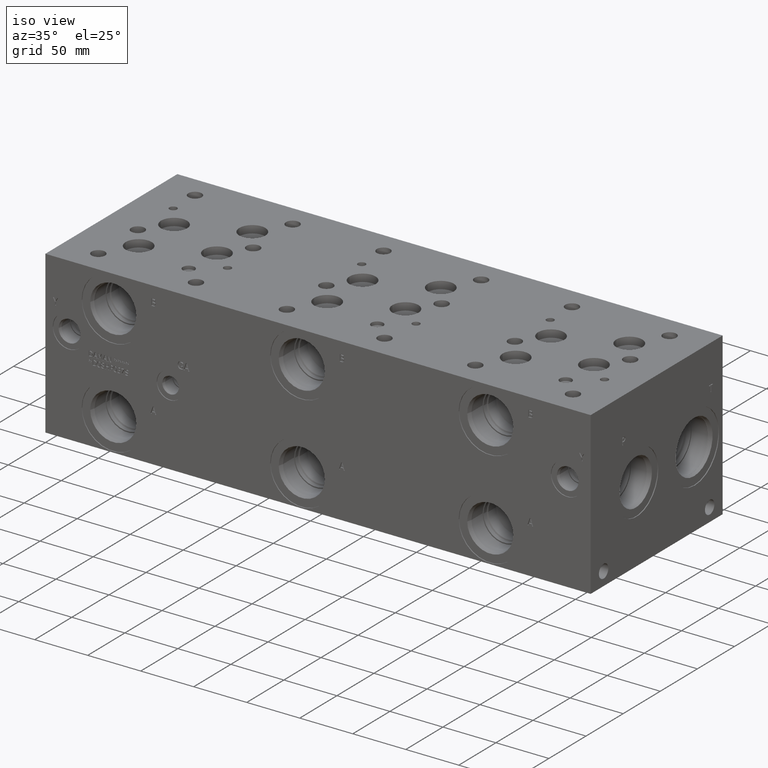
[diagram: clean part render]
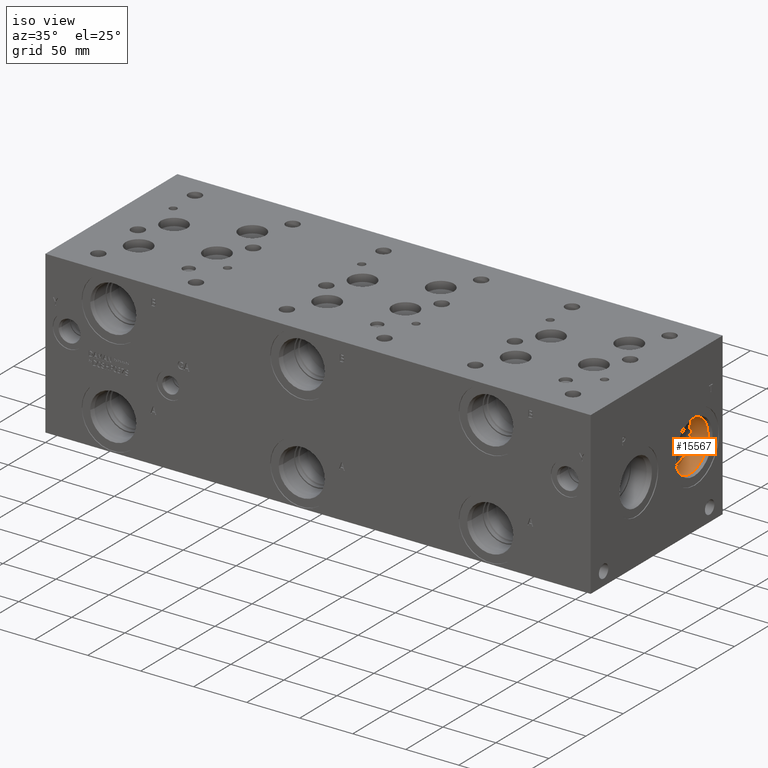
[diagram: same view with one face highlighted and labeled with its STEP entity id]
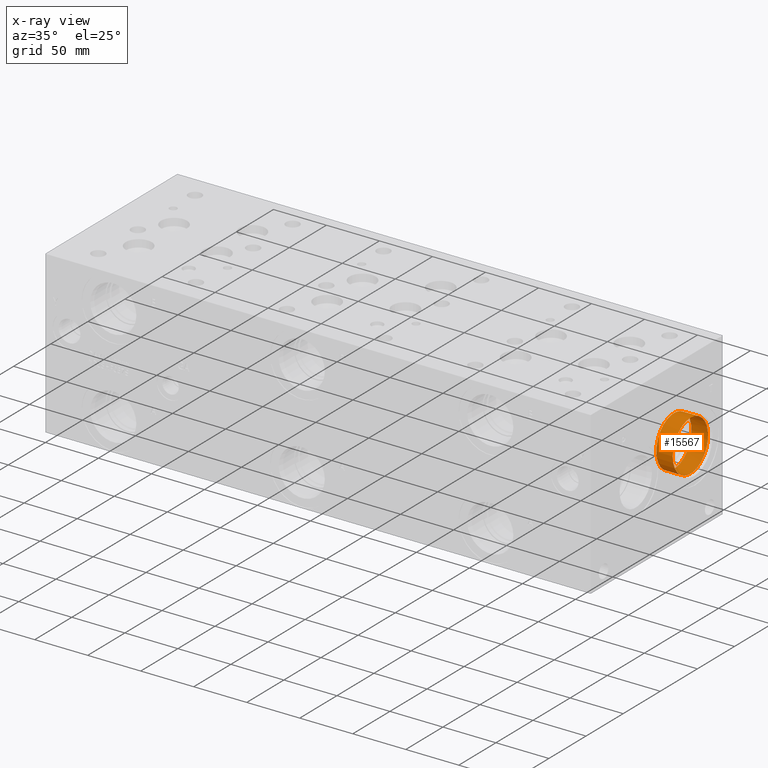
[diagram: x-ray of the same camera — body ghosted, the highlighted face saturated]
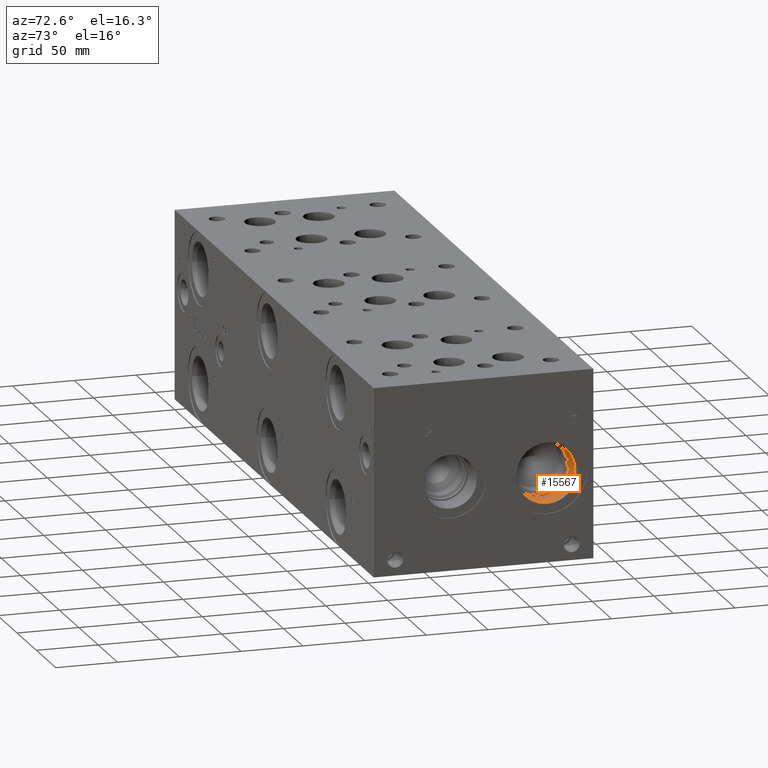
[diagram: same view with one face highlighted and labeled with its STEP entity id]
A machine part, iso view. The second image highlights one B-rep face of the part: STEP entity #15567.
The next image is the same camera in x-ray: the body ghosted, the highlighted face saturated — about 0% of this face is hidden behind the body in this view.
A second angle (auxiliary view) of the same face is appended — the face is thin or edge-on in the first view.
In plain terms, the highlighted cylindrical surface (bore or boss wall) has radius 23.8125 mm, axis along (1, 0, 0).
Its self-contained STEP definition (entity closure, byte-faithful):
#24=CYLINDRICAL_SURFACE('',#16300,23.8125);
#303=CIRCLE('',#16297,23.8125);
#304=CIRCLE('',#16298,23.8125);
#306=CIRCLE('',#16301,23.8125);
#307=CIRCLE('',#16302,23.8125);
#1870=FACE_OUTER_BOUND('',#2772,.T.);
#2772=EDGE_LOOP('',(#12998,#12999,#13000,#13001,#13002,#13003));
#4269=LINE('',#26067,#5637);
#5637=VECTOR('',#19056,23.8125);
#7256=VERTEX_POINT('',#26057);
#7257=VERTEX_POINT('',#26058);
#7259=VERTEX_POINT('',#26064);
#7260=VERTEX_POINT('',#26065);
#9291=EDGE_CURVE('',#7256,#7257,#303,.T.);
#9292=EDGE_CURVE('',#7257,#7256,#304,.T.);
#9294=EDGE_CURVE('',#7259,#7260,#306,.T.);
#9295=EDGE_CURVE('',#7259,#7257,#4269,.T.);
#9296=EDGE_CURVE('',#7260,#7259,#307,.T.);
#12998=ORIENTED_EDGE('',*,*,#9294,.F.);
#12999=ORIENTED_EDGE('',*,*,#9295,.T.);
#13000=ORIENTED_EDGE('',*,*,#9291,.F.);
#13001=ORIENTED_EDGE('',*,*,#9292,.F.);
#13002=ORIENTED_EDGE('',*,*,#9295,.F.);
#13003=ORIENTED_EDGE('',*,*,#9296,.F.);
#15567=ADVANCED_FACE('',(#1870),#24,.F.);
#16297=AXIS2_PLACEMENT_3D('',#26059,#19046,#19047);
#16298=AXIS2_PLACEMENT_3D('',#26060,#19048,#19049);
#16300=AXIS2_PLACEMENT_3D('',#26063,#19052,#19053);
#16301=AXIS2_PLACEMENT_3D('',#26066,#19054,#19055);
#16302=AXIS2_PLACEMENT_3D('',#26068,#19057,#19058);
#19046=DIRECTION('center_axis',(1.,0.,0.));
#19047=DIRECTION('ref_axis',(0.,1.,0.));
#19048=DIRECTION('center_axis',(1.,0.,0.));
#19049=DIRECTION('ref_axis',(0.,1.,0.));
#19052=DIRECTION('center_axis',(1.,0.,0.));
#19053=DIRECTION('ref_axis',(0.,1.,0.));
#19054=DIRECTION('center_axis',(-1.,0.,0.));
#19055=DIRECTION('ref_axis',(0.,1.,0.));
#19056=DIRECTION('',(-1.,0.,0.));
#19057=DIRECTION('center_axis',(-1.,0.,0.));
#19058=DIRECTION('ref_axis',(0.,1.,0.));
#26057=CARTESIAN_POINT('',(494.5126,164.2999,71.4248));
#26058=CARTESIAN_POINT('',(494.5126,116.6749,71.4248));
#26059=CARTESIAN_POINT('Origin',(494.5126,140.4874,71.4248));
#26060=CARTESIAN_POINT('Origin',(494.5126,140.4874,71.4248));
#26063=CARTESIAN_POINT('Origin',(504.4313,140.4874,71.4248));
#26064=CARTESIAN_POINT('',(510.0701,116.6749,71.4248));
#26065=CARTESIAN_POINT('',(510.0701,140.4874,95.2373));
#26066=CARTESIAN_POINT('Origin',(510.0701,140.4874,71.4248));
#26067=CARTESIAN_POINT('',(504.4313,116.6749,71.4248));
#26068=CARTESIAN_POINT('Origin',(510.0701,140.4874,71.4248));